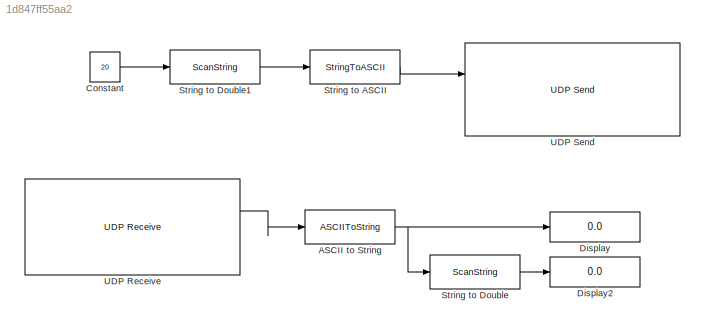
MODEL slx_1d847ff55aa2
KIND model
CONFIG AbsTol = auto
CONFIG EnableMultiTasking = off
CONFIG FixedStep = auto
CONFIG MaxStep = auto
CONFIG MinStep = auto
CONFIG RelTol = 1e-3
CONFIG SampleTimeConstraint = Unconstrained
CONFIG SolverName = VariableStepAuto
CONFIG StartTime = 0.0
CONFIG StopTime = 4
BLOCK [ASCIIToString] ASCII to String
BLOCK [Constant] Constant
  Commented = on
  Value = 20
BLOCK [Display] Display
  Decimation = 1
  Format = long
  Ports = [1]
BLOCK [Display] Display2
  Decimation = 1
  Format = long
  Ports = [1]
BLOCK [StringToASCII] String to ASCII
  Commented = on
BLOCK [ScanString] String to Double
  Format = "%lf"
  Ports = [1, 1]
BLOCK [ScanString] String to Double1
  Commented = on
  Format = "%s"
  Ports = [1, 1]
BLOCK [Reference] UDP Receive  REF=slrealtimeiplib/UDP Receive
  Ports = [0, 2]
  SourceBlock = slrealtimeiplib/UDP Receive
  SourceProductBaseCode = XP
  SourceType = slrealtimeudpreceive
BLOCK [Reference] UDP Send  REF=slrealtimeiplib/UDP Send
  Commented = on
  Ports = [2]
  SourceBlock = slrealtimeiplib/UDP Send
  SourceProductBaseCode = XP
  SourceType = slrealtimeudpsend
NET ASCII to String:1 -> Display:1, String to Double:1
LINE Constant:1 -> String to Double1:1
LINE String to ASCII:1 -> UDP Send:1
LINE String to Double1:1 -> String to ASCII:1
LINE String to Double:1 -> Display2:1
LINE UDP Receive:1 -> ASCII to String:1
note: NET lines group one-source signal fan-out (src -> all destinations, sorted); 1:1 wires keep LINE
